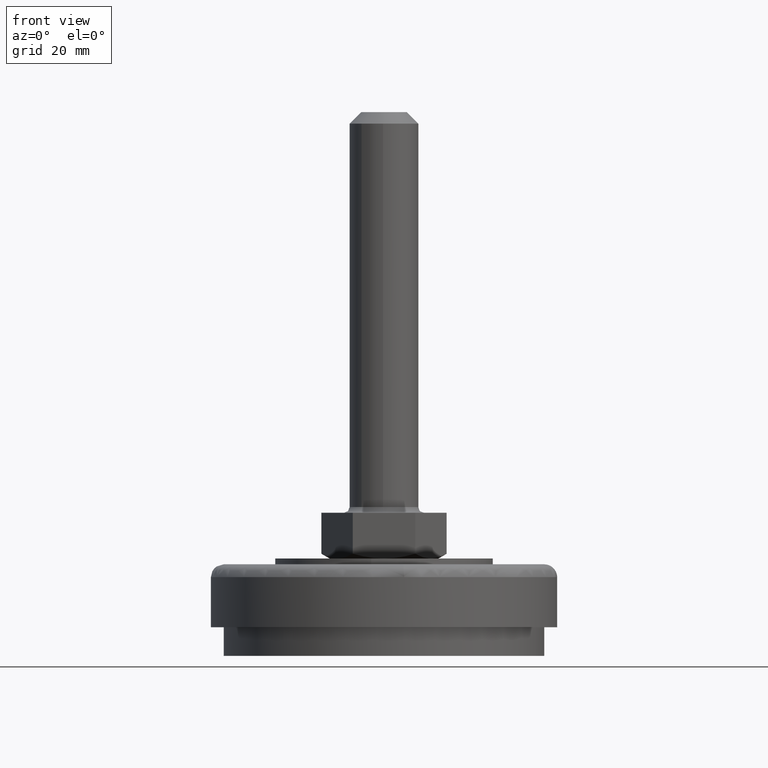
[diagram: clean part render]
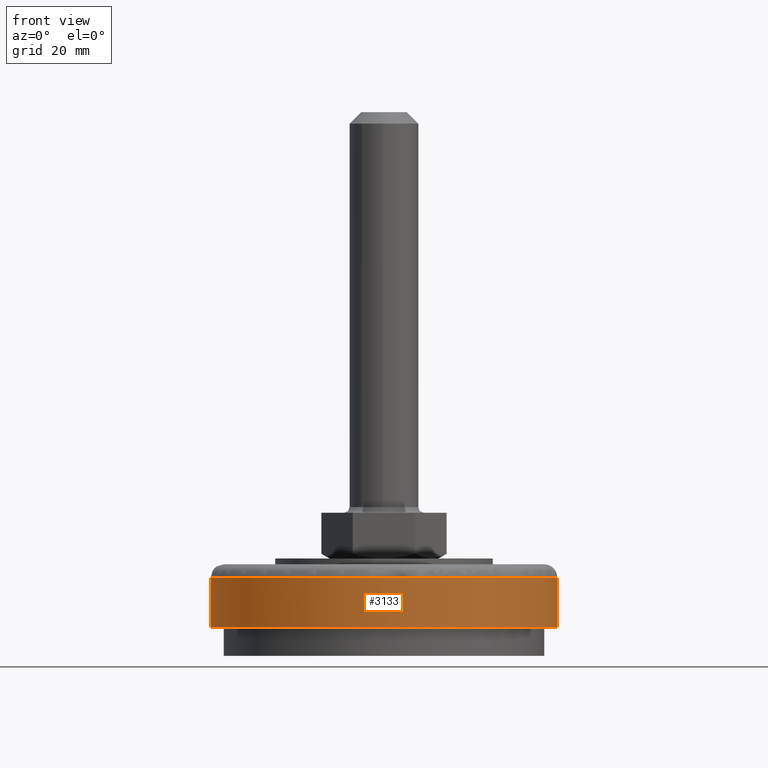
[diagram: same view with one face highlighted and labeled with its STEP entity id]
A machine part, front view. The second image highlights one B-rep face of the part: STEP entity #3133.
In plain terms, the highlighted face is a freeform B-spline surface patch.
Its self-contained STEP definition (entity closure, byte-faithful):
#2982=CARTESIAN_POINT('',(28.318343257993877,10.636443725345039,13.968750235131255));
#2983=CARTESIAN_POINT('',(29.916161585795809,6.382430914391083,13.968750235131251));
#2984=CARTESIAN_POINT('',(30.193577652261471,1.846718320929407,13.968750235131250));
#2985=CARTESIAN_POINT('',(32.040295973190872,-28.346859331332055,13.968750235131253));
#2986=CARTESIAN_POINT('',(1.846718320929407,-30.193577652261471,13.968750235131250));
#2987=CARTESIAN_POINT('',(-28.346859331332055,-32.040295973190872,13.968750235131253));
#2988=CARTESIAN_POINT('',(-30.193577652261471,-1.846718320929407,13.968750235131250));
#2989=CARTESIAN_POINT('',(-32.040295973190872,28.346859331332055,13.968750235131253));
#2990=CARTESIAN_POINT('',(-1.846718320929407,30.193577652261471,13.968750235131250));
#2991=CARTESIAN_POINT('',(28.318343257993877,10.636443725345039,4.775781244121811));
#2992=CARTESIAN_POINT('',(29.916161585795809,6.382430914391083,4.775781244121811));
#2993=CARTESIAN_POINT('',(30.193577652261471,1.846718320929407,4.775781244121809));
#2994=CARTESIAN_POINT('',(32.040295973190872,-28.346859331332055,4.775781244121809));
#2995=CARTESIAN_POINT('',(1.846718320929407,-30.193577652261471,4.775781244121809));
#2996=CARTESIAN_POINT('',(-28.346859331332055,-32.040295973190872,4.775781244121809));
#2997=CARTESIAN_POINT('',(-30.193577652261471,-1.846718320929407,4.775781244121809));
#2998=CARTESIAN_POINT('',(-32.040295973190872,28.346859331332055,4.775781244121809));
#2999=CARTESIAN_POINT('',(-1.846718320929407,30.193577652261471,4.775781244121809));
#3007=(BOUNDED_SURFACE()B_SPLINE_SURFACE(2,1,((#2982,#2991),(#2983,#2992),(#2984,#2993),(#2985,#2994),(#2986,#2995),(#2987,#2996),(#2988,#2997),(#2989,#2998),(#2990,#2999)),.UNSPECIFIED.,.F.,.F.,.U.)B_SPLINE_SURFACE_WITH_KNOTS((3,2,2,2,3),(2,2),(0.0,10.023968209428901,60.143809256573377,110.263650303717900,160.383491350862410),(0.0,9.192968991009444),.UNSPECIFIED.)GEOMETRIC_REPRESENTATION_ITEM()RATIONAL_B_SPLINE_SURFACE(((0.906274169979695,0.906274169979695),(0.941421356237309,0.941421356237309),(1.0,1.0),(0.707106781186548,0.707106781186548),(1.0,1.0),(0.707106781186548,0.707106781186548),(1.0,1.0),(0.707106781186548,0.707106781186548),(1.0,1.0)))REPRESENTATION_ITEM('')SURFACE());
#3008=CARTESIAN_POINT('',(28.318349285144020,10.636427678703420,13.750000148736600));
#3009=VERTEX_POINT('',#3008);
#3010=CARTESIAN_POINT('',(30.249999999999972,1.731788E-015,13.750000229396351));
#3011=VERTEX_POINT('',#3010);
#3012=CARTESIAN_POINT('',(28.318349285144020,10.636427678703420,13.750000148736611));
#3013=CARTESIAN_POINT('',(30.249999999999982,5.493614575243253,13.750000187736349));
#3014=CARTESIAN_POINT('',(30.249999999999972,1.731788E-015,13.750000229396351));
#3022=(BOUNDED_CURVE()B_SPLINE_CURVE(2,(#3012,#3013,#3014),.UNSPECIFIED.,.F.,.U.)B_SPLINE_CURVE_WITH_KNOTS((3,3),(0.440284260401498,0.500000000000000),.UNSPECIFIED.)CURVE()GEOMETRIC_REPRESENTATION_ITEM()RATIONAL_B_SPLINE_CURVE((0.893499664165764,0.930038659260676,1.0))REPRESENTATION_ITEM(''));
#3023=EDGE_CURVE('',#3009,#3011,#3022,.T.);
#3024=ORIENTED_EDGE('',*,*,#3023,.T.);
#3025=CARTESIAN_POINT('',(3.492792937156420,-30.047677073247250,13.750000229396329));
#3026=VERTEX_POINT('',#3025);
#3027=CARTESIAN_POINT('',(30.249999999999972,1.731788E-015,13.750000229396351));
#3028=CARTESIAN_POINT('',(30.250000000000011,-26.937373949992477,13.749999999999996));
#3029=CARTESIAN_POINT('',(3.492792937156420,-30.047677073247250,13.750000229396335));
#3037=(BOUNDED_CURVE()B_SPLINE_CURVE(2,(#3027,#3028,#3029),.UNSPECIFIED.,.F.,.U.)B_SPLINE_CURVE_WITH_KNOTS((3,3),(0.500000000000000,0.729999999999859),.UNSPECIFIED.)CURVE()GEOMETRIC_REPRESENTATION_ITEM()RATIONAL_B_SPLINE_CURVE((1.0,0.730538238691789,0.956886118190383))REPRESENTATION_ITEM(''));
#3038=EDGE_CURVE('',#3011,#3026,#3037,.T.);
#3039=ORIENTED_EDGE('',*,*,#3038,.T.);
#3040=CARTESIAN_POINT('',(-30.250000000000000,0.0,13.750000000000000));
#3041=VERTEX_POINT('',#3040);
#3042=CARTESIAN_POINT('',(3.492792937156420,-30.047677073247254,13.750000229396333));
#3043=CARTESIAN_POINT('',(1.752256330223341,-30.250000000000007,13.750000000000004));
#3044=CARTESIAN_POINT('',(0.0,-30.250000000000000,13.750000000000000));
#3045=CARTESIAN_POINT('',(-30.250000000000000,-30.250000000000000,13.750000000000000));
#3046=CARTESIAN_POINT('',(-30.250000000000000,0.0,13.750000000000000));
#3054=(BOUNDED_CURVE()B_SPLINE_CURVE(2,(#3042,#3043,#3044,#3045,#3046),.UNSPECIFIED.,.F.,.U.)B_SPLINE_CURVE_WITH_KNOTS((3,2,3),(0.729999999999860,0.750000000000000,1.0),.UNSPECIFIED.)CURVE()GEOMETRIC_REPRESENTATION_ITEM()RATIONAL_B_SPLINE_CURVE((0.956886118190384,0.976568542494760,1.0,0.707106781186547,1.0))REPRESENTATION_ITEM(''));
#3055=EDGE_CURVE('',#3026,#3041,#3054,.T.);
#3056=ORIENTED_EDGE('',*,*,#3055,.T.);
#3057=CARTESIAN_POINT('',(-1.846693694386508,30.193579158465202,13.750000000000220));
#3058=VERTEX_POINT('',#3057);
#3059=CARTESIAN_POINT('',(-30.250000000000000,0.0,13.750000000000000));
#3060=CARTESIAN_POINT('',(-30.250000000000000,28.456381776905527,13.749999999999998));
#3061=CARTESIAN_POINT('',(-1.846693694386508,30.193579158465202,13.750000000000220));
#3069=(BOUNDED_CURVE()B_SPLINE_CURVE(2,(#3059,#3060,#3061),.UNSPECIFIED.,.F.,.U.)B_SPLINE_CURVE_WITH_KNOTS((3,3),(0.0,0.239333102974922),.UNSPECIFIED.)CURVE()GEOMETRIC_REPRESENTATION_ITEM()RATIONAL_B_SPLINE_CURVE((1.0,0.719603828404254,0.976072343290897))REPRESENTATION_ITEM(''));
#3070=EDGE_CURVE('',#3041,#3058,#3069,.T.);
#3071=ORIENTED_EDGE('',*,*,#3070,.T.);
#3072=CARTESIAN_POINT('',(-1.846693991234945,30.193579140309659,5.000000000000091));
#3073=VERTEX_POINT('',#3072);
#3074=CARTESIAN_POINT('',(-1.846693694386508,30.193579158465202,13.750000000000220));
#3075=CARTESIAN_POINT('',(-1.846693991234945,30.193579140309659,5.000000000000091));
#3076=QUASI_UNIFORM_CURVE('',1,(#3074,#3075),.UNSPECIFIED.,.F.,.U.);
#3077=EDGE_CURVE('',#3058,#3073,#3076,.T.);
#3078=ORIENTED_EDGE('',*,*,#3077,.T.);
#3079=CARTESIAN_POINT('',(-30.250000000000000,0.0,5.000000000000091));
#3080=VERTEX_POINT('',#3079);
#3081=CARTESIAN_POINT('',(-30.250000000000000,0.0,5.000000000000091));
#3082=CARTESIAN_POINT('',(-30.250000000000000,28.456381496613588,5.000000000000090));
#3083=CARTESIAN_POINT('',(-1.846693991234945,30.193579140309652,5.000000000000091));
#3091=(BOUNDED_CURVE()B_SPLINE_CURVE(2,(#3081,#3082,#3083),.UNSPECIFIED.,.F.,.U.)B_SPLINE_CURVE_WITH_KNOTS((3,3),(0.0,0.239333101278526),.UNSPECIFIED.)CURVE()GEOMETRIC_REPRESENTATION_ITEM()RATIONAL_B_SPLINE_CURVE((1.0,0.719603830391705,0.976072339655194))REPRESENTATION_ITEM(''));
#3092=EDGE_CURVE('',#3080,#3073,#3091,.T.);
#3093=ORIENTED_EDGE('',*,*,#3092,.F.);
#3094=CARTESIAN_POINT('',(30.250000000000000,0.0,5.000000000000091));
#3095=VERTEX_POINT('',#3094);
#3096=CARTESIAN_POINT('',(30.250000000000000,0.0,5.000000000000091));
#3097=CARTESIAN_POINT('',(30.250000000000000,-30.250000000000000,5.000000000000090));
#3098=CARTESIAN_POINT('',(0.0,-30.250000000000000,5.000000000000091));
#3099=CARTESIAN_POINT('',(-30.250000000000000,-30.250000000000000,5.000000000000090));
#3100=CARTESIAN_POINT('',(-30.250000000000000,0.0,5.000000000000091));
#3108=(BOUNDED_CURVE()B_SPLINE_CURVE(2,(#3096,#3097,#3098,#3099,#3100),.UNSPECIFIED.,.F.,.U.)B_SPLINE_CURVE_WITH_KNOTS((3,2,3),(0.500000000000000,0.750000000000000,1.0),.UNSPECIFIED.)CURVE()GEOMETRIC_REPRESENTATION_ITEM()RATIONAL_B_SPLINE_CURVE((1.0,0.707106781186547,1.0,0.707106781186547,1.0))REPRESENTATION_ITEM(''));
#3109=EDGE_CURVE('',#3095,#3080,#3108,.T.);
#3110=ORIENTED_EDGE('',*,*,#3109,.F.);
#3111=CARTESIAN_POINT('',(28.318349212548299,10.636427871982111,5.000000000000091));
#3112=VERTEX_POINT('',#3111);
#3113=CARTESIAN_POINT('',(28.318349212548306,10.636427871982107,5.000000000000091));
#3114=CARTESIAN_POINT('',(30.250000000000000,5.493614681879224,5.000000000000091));
#3115=CARTESIAN_POINT('',(30.250000000000000,0.0,5.000000000000091));
#3123=(BOUNDED_CURVE()B_SPLINE_CURVE(2,(#3113,#3114,#3115),.UNSPECIFIED.,.F.,.U.)B_SPLINE_CURVE_WITH_KNOTS((3,3),(0.440284259323457,0.500000000000000),.UNSPECIFIED.)CURVE()GEOMETRIC_REPRESENTATION_ITEM()RATIONAL_B_SPLINE_CURVE((0.893499662846495,0.930038657997672,1.0))REPRESENTATION_ITEM(''));
#3124=EDGE_CURVE('',#3112,#3095,#3123,.T.);
#3125=ORIENTED_EDGE('',*,*,#3124,.F.);
#3126=CARTESIAN_POINT('',(28.318349285144020,10.636427678703420,13.750000148736600));
#3127=CARTESIAN_POINT('',(28.318349212548299,10.636427871982111,5.000000000000091));
#3128=QUASI_UNIFORM_CURVE('',1,(#3126,#3127),.UNSPECIFIED.,.F.,.U.);
#3129=EDGE_CURVE('',#3009,#3112,#3128,.T.);
#3130=ORIENTED_EDGE('',*,*,#3129,.F.);
#3131=EDGE_LOOP('',(#3024,#3039,#3056,#3071,#3078,#3093,#3110,#3125,#3130));
#3132=FACE_OUTER_BOUND('',#3131,.T.);
#3133=ADVANCED_FACE('',(#3132),#3007,.T.);